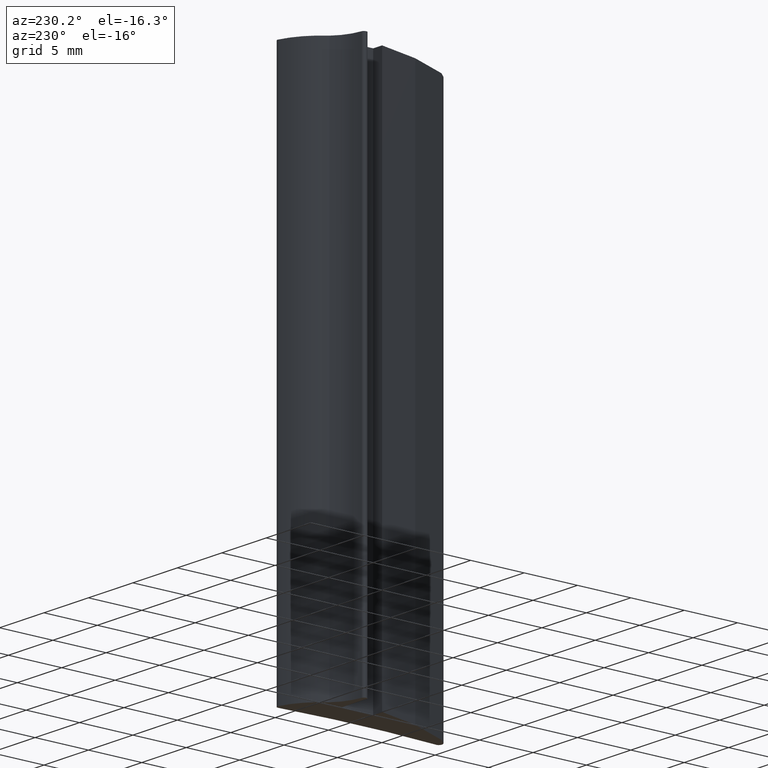
[diagram: clean part render]
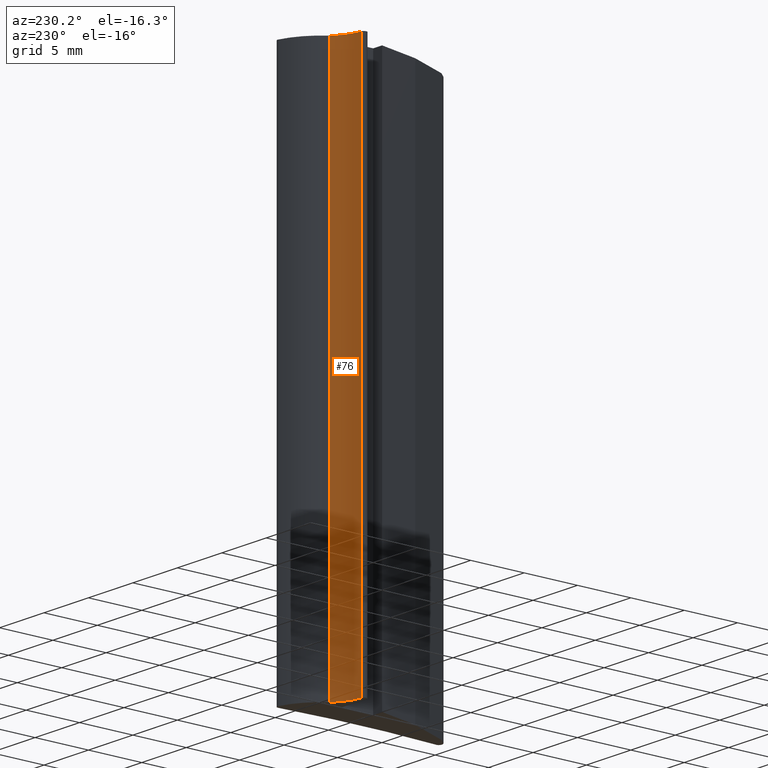
[diagram: same view with one face highlighted and labeled with its STEP entity id]
A machine part, auxiliary view. The second image highlights one B-rep face of the part: STEP entity #76.
In plain terms, the highlighted cylindrical surface (partial cylindrical patch) has radius 3.7154 mm, axis along (0, 0, -1).
Its self-contained STEP definition (entity closure, byte-faithful):
#9=CARTESIAN_POINT('',(-3.438338466674850,12.799504298457578,0.0));
#10=VERTEX_POINT('',#9);
#18=CARTESIAN_POINT('',(-3.438338466674850,12.799504298457578,50.0));
#19=VERTEX_POINT('',#18);
#20=CARTESIAN_POINT('',(-3.438338466674850,12.799504298457578,0.0));
#21=DIRECTION('',(0.0,0.0,1.0));
#22=VECTOR('',#21,50.0);
#23=LINE('',#20,#22);
#24=EDGE_CURVE('',#10,#19,#23,.T.);
#44=CARTESIAN_POINT('',(-6.041799594229815,15.450228709320072,0.0));
#45=DIRECTION('',(0.0,0.0,-1.0));
#46=DIRECTION('',(0.700717752856592,-0.713438596398882,0.0));
#47=AXIS2_PLACEMENT_3D('',#44,#45,#46);
#48=CYLINDRICAL_SURFACE('',#47,3.715420534075678);
#49=CARTESIAN_POINT('',(-5.776201867659438,11.744313492714355,0.0));
#50=VERTEX_POINT('',#49);
#51=CARTESIAN_POINT('',(-6.041799594229815,15.450228709320072,0.0));
#52=DIRECTION('',(0.0,0.0,-1.0));
#53=DIRECTION('',(1.0,0.0,0.0));
#54=AXIS2_PLACEMENT_3D('',#51,#52,#53);
#55=CIRCLE('',#54,3.715420534075678);
#56=EDGE_CURVE('',#10,#50,#55,.T.);
#57=ORIENTED_EDGE('',*,*,#56,.T.);
#58=CARTESIAN_POINT('',(-5.776201867659438,11.744313492714355,50.0));
#59=VERTEX_POINT('',#58);
#60=CARTESIAN_POINT('',(-5.776201867659438,11.744313492714355,0.0));
#61=DIRECTION('',(0.0,0.0,1.0));
#62=VECTOR('',#61,50.0);
#63=LINE('',#60,#62);
#64=EDGE_CURVE('',#50,#59,#63,.T.);
#65=ORIENTED_EDGE('',*,*,#64,.T.);
#66=CARTESIAN_POINT('',(-6.041799594229815,15.450228709320072,50.0));
#67=DIRECTION('',(0.0,0.0,-1.0));
#68=DIRECTION('',(1.0,0.0,0.0));
#69=AXIS2_PLACEMENT_3D('',#66,#67,#68);
#70=CIRCLE('',#69,3.715420534075678);
#71=EDGE_CURVE('',#19,#59,#70,.T.);
#72=ORIENTED_EDGE('',*,*,#71,.F.);
#73=ORIENTED_EDGE('',*,*,#24,.F.);
#74=EDGE_LOOP('',(#57,#65,#72,#73));
#75=FACE_OUTER_BOUND('',#74,.T.);
#76=ADVANCED_FACE('',(#75),#48,.F.);